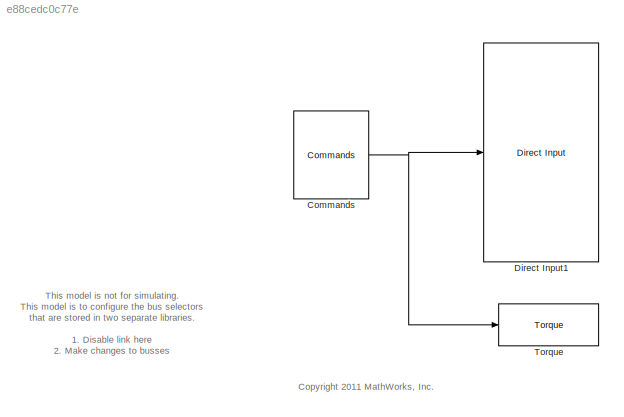
MODEL slx_e88cedc0c77e
KIND model
BLOCK [Reference] Commands  REF=Turbine_Input_Lib/Commands
  FunctionWithSeparateData = off
  GeneratePreprocessorConditionals = off
  Ports = [0, 1]
  ShowPortLabels = FromPortIcon
  SourceBlock = Turbine_Input_Lib/Commands
  SystemSampleTime = -1
BLOCK [Reference] Direct Input1  REF=Main_Controller_Lib/Direct Input
  FunctionWithSeparateData = off
  GeneratePreprocessorConditionals = off
  Ports = [1, 0, 0, 0, 0, 0, 4]
  ShowPortLabels = FromPortIcon
  SourceBlock = Main_Controller_Lib/Direct Input
  SystemSampleTime = -1
BLOCK [Reference] Torque  REF=Wind_Lib/Torque
  FunctionWithSeparateData = off
  GeneratePreprocessorConditionals = off
  Ports = [1, 0, 0, 0, 0, 0, 3]
  ShowPortLabels = FromPortIcon
  SourceBlock = Wind_Lib/Torque
  SystemSampleTime = -1
ANNOTATION (root): <copyright redacted>
ANNOTATION (root): This model is not for simulating. This model is to configure the bus selectors that are stored in two separate libraries. 1. Disable link here 2. Make changes to busses 3. Update diagram 4. Restore Link, and UPDATE LIBRARY
NET Commands:1 -> Direct Input1:1, Torque:1
note: NET lines group one-source signal fan-out (src -> all destinations, sorted); 1:1 wires keep LINE
